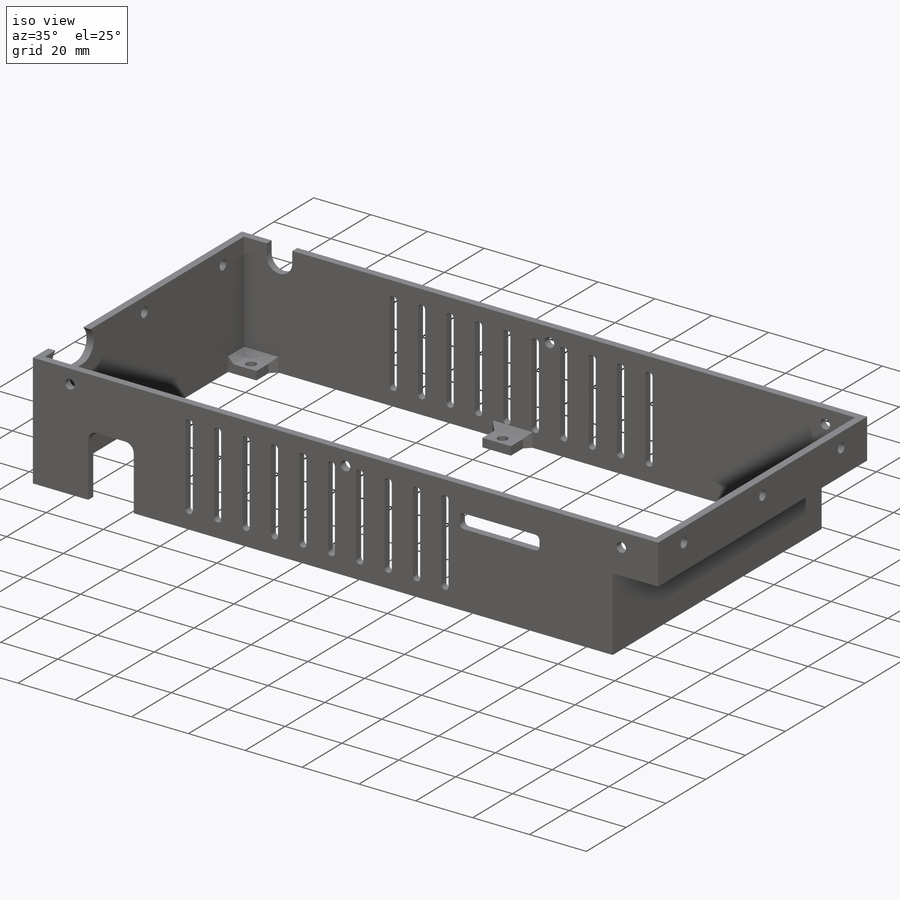
[diagram: iso view]
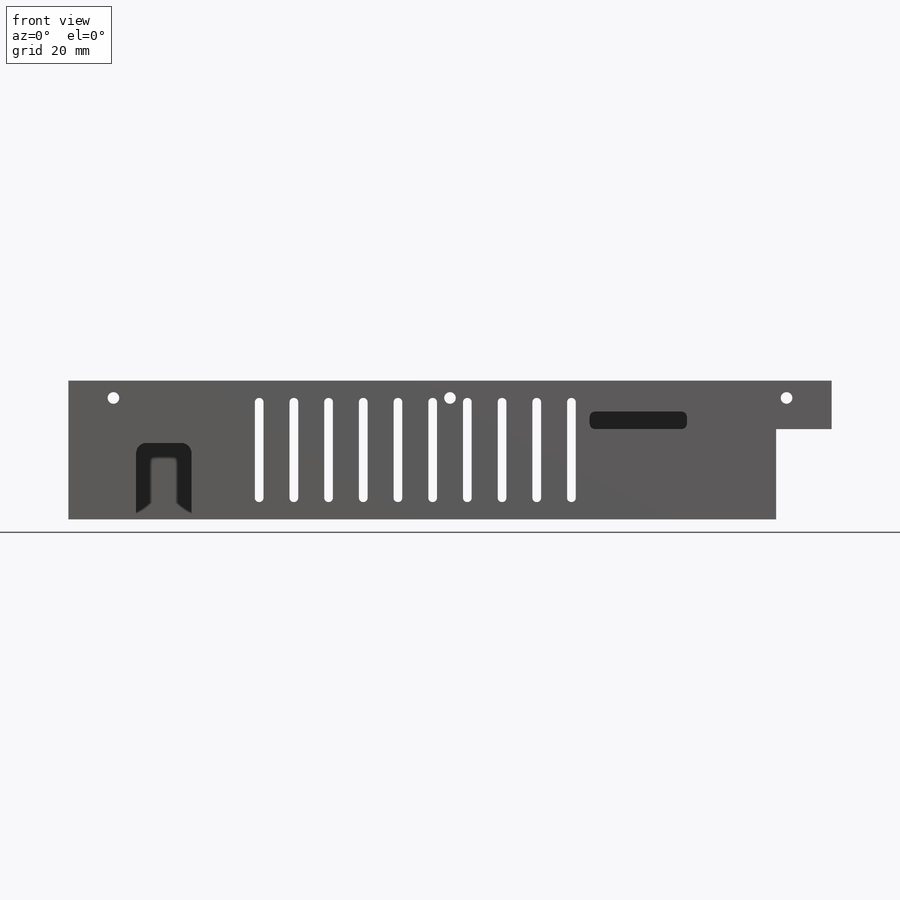
[diagram: front view]
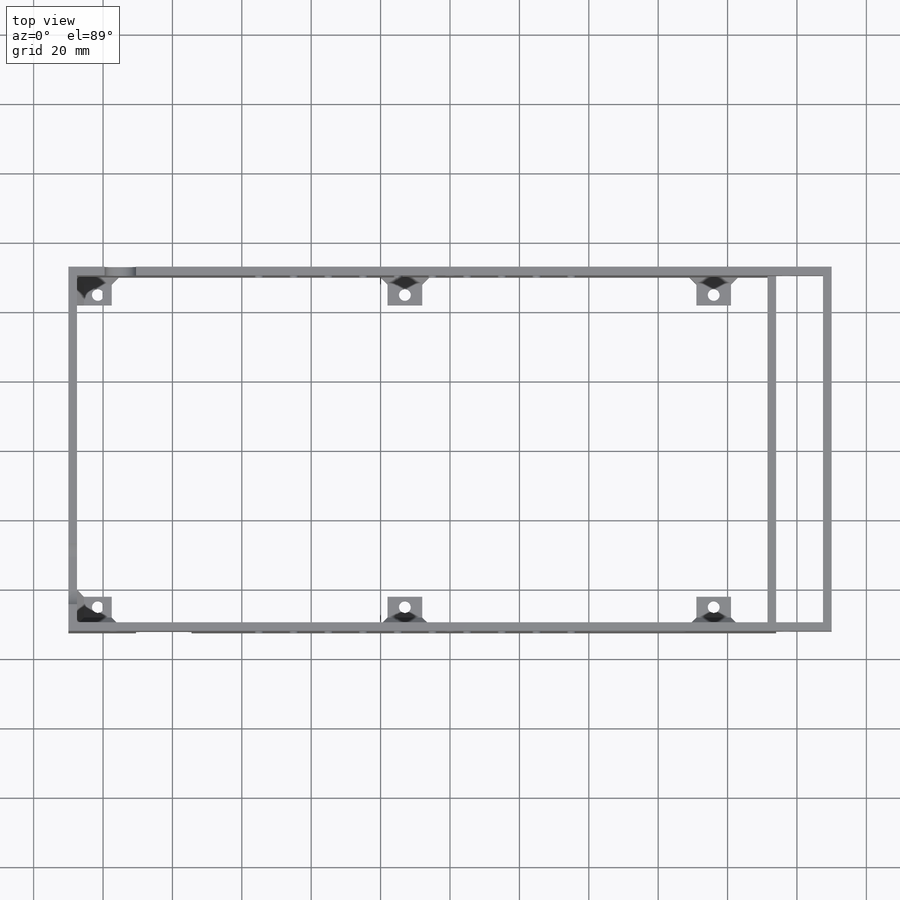
[diagram: top view]
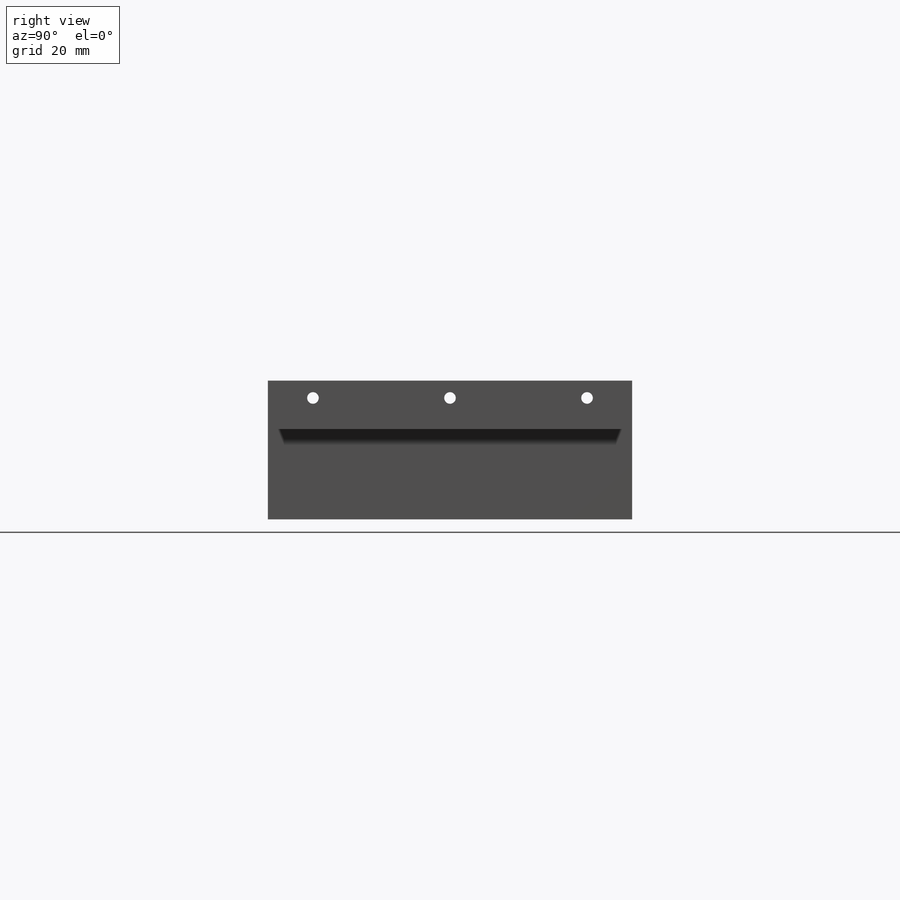
[diagram: right view]
SOLIDWORKS PART (.sldprt)
format: sldprt  version: not decoded by parser v0  size: 825,856 bytes
history: native  units: mm
features: sketch x14, cut_extrude x10, extrude x4, plane x3, material x1, chamfer x1 (+10 scaffold rows collapsed)
feature tree (43):
  scaffold x10  (default folders/planes/origin — collapsed)
  material  "Malzeme <belirli değil>"
  plane  "Ön Düzlem"
  plane  "Üst Düzlem"
  plane  "Sağ Düzlem"
  sketch  "Çizim1"  dims[c1.D7=8.5mm c1.D11=3.0mm c1.D12=10.0mm c1.D15=38.0mm c1.D16=38.0mm c1.D19=3.8mm c1.D20=3.8mm c1.D21=3.8mm c1.D22=3.8mm c1.D23=3.8mm c1.D24=3.8mm c1.D25=3.8mm c1.D26=3.8mm c1.D38=2.0mm c1.D1=105.0mm c1.D2=11.0mm c1.D3=~50.996023mm c2.D3=~124.963098deg c3.D3=79.0mm c3.D4=52.0mm c3.D5=30.0mm c3.D6=18.0mm c3.D8=2.6mm c3.D9=33.0mm c3.D10=18.0mm c3.D13=220.0mm c3.D14=45.0mm c3.D17=50.0mm c3.D18=20.0mm c3.D27=32.0mm c3.D28=32.0mm c3.D29=32.0mm c3.D30=32.0mm c3.D31=32.0mm c3.D32=32.0mm c3.D33=16.0mm c3.D34=16.0mm c3.D35=16.0mm c3.D36=16.0mm c3.D37=50.4mm c4.D5=55.75mm]
  extrude  "Yükseklik-Ekstrüzyon1"  Depth=40mm
  sketch  "Çizim2"  dims[D1=215.0mm D2=100.0mm]
  cut_extrude  "Kes-Ekstrüzyon1"  Depth=40mm
  sketch  "Çizim3"  dims[D1=16.0mm D2=26.0mm]
  cut_extrude  "Kes-Ekstrüzyon2"  Depth=120mm
  sketch  "Çizim4"  dims[D4=3.0mm D1=19.5mm D2=16.0mm D3=22.0mm]
  cut_extrude  "Kes-Ekstrüzyon3"  Depth=3mm
  sketch  "Çizim5"  dims[c1.D1=4.5mm c1.D2=20.0mm c1.D3=38.0mm c2.D2=4.0mm c2.D3=38.0mm c2.D4=15.0mm]
  cut_extrude  "Kes-Ekstrüzyon4"  Depth=3mm
  sketch  "Çizim7"  dims[c1.D4=3.4mm c1.D5=3.4mm c1.D6=3.4mm c1.D2=1.2mm c1.D1=8.0mm c2.D2=89.0mm c2.D3=89.0mm c2.D7=5.0mm c2.D8=2.5mm c2.D9=30.0mm c2.D10=20.0mm c2.D11=55.0mm c3.D3=27.6mm c3.D4=11.0]
  cut_extrude  "Kes-Ekstrüzyon6"  [1 undecoded]
  sketch  "Çizim8"  dims[D5=1.5mm D1=28.0mm D2=26.0mm D3=5.0mm D4=55.75mm]
  cut_extrude  "Kes-Ekstrüzyon7"  Depth=3mm
  sketch  "Çizim9"  dims[c1.D1=12.0mm c1.D3=5.5mm c1.D5=5.5mm c1.D2=15.0mm c2.D1=16.5mm c2.D2=36.0mm c2.D4=10.0mm c2.D5=10.0mm]
  cut_extrude  "Kes-Ekstrüzyon8"  Depth=3mm
  sketch  "Çizim10"  dims[D3=3.35mm D5=3.35mm D6=3.35mm D1=13.0mm D2=5.0mm D4=5.0mm D7=13.0mm D8=5.0mm]
  cut_extrude  "Kes-Ekstrüzyon9"  Depth=120mm
  sketch  "Çizim11"  dims[D3=3.35mm D6=3.35mm D7=3.35mm D1=13.0mm D2=5.0mm D4=5.0mm D5=13.0mm D8=5.0mm]
  cut_extrude  "Kes-Ekstrüzyon10"  Depth=220mm
  sketch  "Çizim12"  dims[D1=2.5mm D2=~25.96935mm]
  extrude  "Yükseklik-Ekstrüzyon2"  Depth=100mm
  sketch  "Çizim13"  dims[c1.D1=10.0mm c1.D2=3.0mm c1.D3=10.0mm c1.D4=3.0mm c1.D5=10.0mm c1.D6=3.0mm c1.D7=5.0mm c2.D3=3.0mm c2.D4=10.0mm c2.D8=5.0mm]
  extrude  "Yükseklik-Ekstrüzyon3"  Depth=8mm
  sketch  "Çizim14"  dims[c1.D1=10.0mm c1.D2=3.0mm c1.D3=3.0mm c1.D4=10.0mm c1.D5=5.0mm c1.D6=3.0mm c1.D7=10.0mm c2.D1=3.0mm c2.D2=10.0mm c2.D8=5.0mm]
  extrude  "Yükseklik-Ekstrüzyon4"  Depth=8mm
  chamfer  "Pah1"  Distance=2mm Angle=45deg
  sketch  "Çizim15"  dims[D2=3.4mm D5=3.4mm D9=3.4mm D11=3.4mm D14=3.4mm D16=3.4mm D1=5.0mm D3=3.0mm D4=5.0mm D6=3.0mm D7=4.0mm D8=3.0mm D10=4.0mm D12=3.0mm D13=5.0mm D15=3.0mm D17=3.0mm D18=5.0mm]
  cut_extrude  "Kes-Ekstrüzyon11"  Depth=3mm
decode coverage: 28 of 29 modeling features carry decoded parameters
note: ~ marks probable driven/reference dimensions
note: 1 parameter value undecoded
note: suppression state not decoded; provenance and decode notes live in map.json
